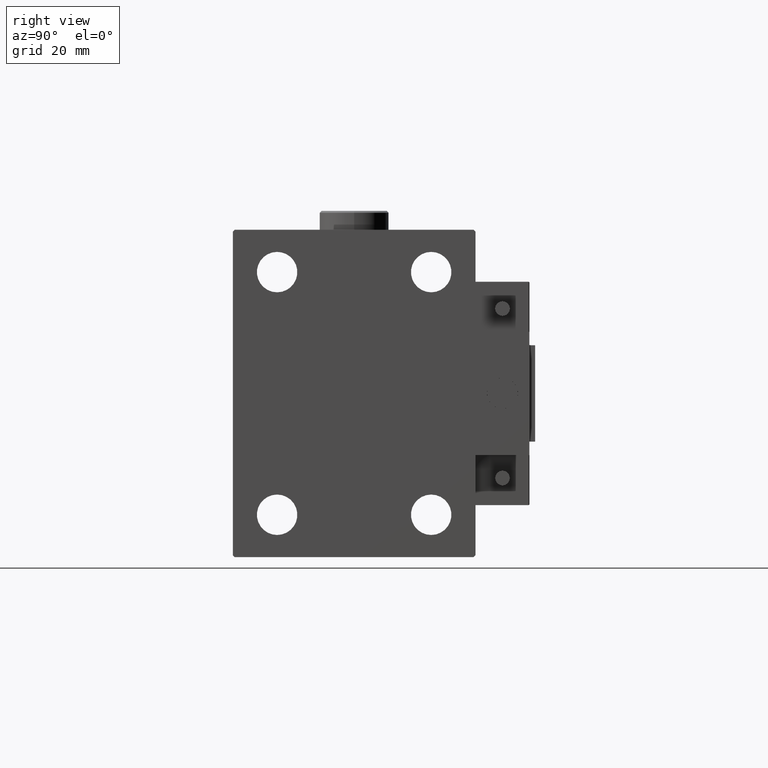
[diagram: clean part render]
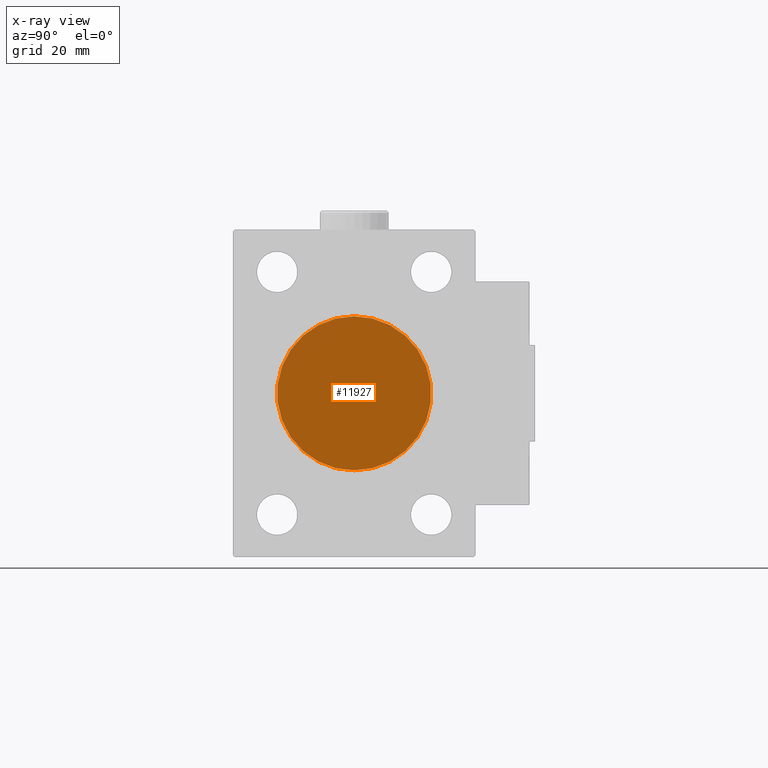
[diagram: x-ray — body ghosted, one internal face saturated and labeled with its STEP entity id]
A machine part, right view, then the same camera in x-ray: the body is ghosted and one INTERNAL B-rep face — a face not visible from any outside direction — is saturated and labeled: STEP entity #11927.
In plain terms, the highlighted planar face has unit normal (-1, 0, 0).
Its self-contained STEP definition (entity closure, byte-faithful):
#5867 = CARTESIAN_POINT ( 'NONE',  ( 20.00000000000000000, 2.449293598294706513E-15, 0.000000000000000000 ) ) ;
#6396 = AXIS2_PLACEMENT_3D ( 'NONE', #45714, #14063, #21599 ) ;
#7328 = DIRECTION ( 'NONE',  ( 0.000000000000000000, 0.000000000000000000, 1.000000000000000000 ) ) ;
#7581 = DIRECTION ( 'NONE',  ( 1.000000000000000000, 0.000000000000000000, 0.000000000000000000 ) ) ;
#7834 = CARTESIAN_POINT ( 'NONE',  ( -20.00000000000000000, 0.000000000000000000, 0.000000000000000000 ) ) ;
#8297 = DIRECTION ( 'NONE',  ( 1.000000000000000000, 0.000000000000000000, -0.000000000000000000 ) ) ;
#11927 = ADVANCED_FACE ( 'NONE', ( #28811 ), #17113, .F. ) ;
#14063 = DIRECTION ( 'NONE',  ( 0.000000000000000000, 0.000000000000000000, 1.000000000000000000 ) ) ;
#15954 = ORIENTED_EDGE ( 'NONE', *, *, #43690, .F. ) ;
#16095 = CARTESIAN_POINT ( 'NONE',  ( 0.000000000000000000, 0.000000000000000000, 0.000000000000000000 ) ) ;
#17113 = PLANE ( 'NONE',  #45553 ) ;
#19801 = EDGE_CURVE ( 'NONE', #36434, #48473, #28796, .T. ) ;
#21599 = DIRECTION ( 'NONE',  ( 1.000000000000000000, 0.000000000000000000, 0.000000000000000000 ) ) ;
#28796 = CIRCLE ( 'NONE', #6396, 20.00000000000000000 ) ;
#28811 = FACE_OUTER_BOUND ( 'NONE', #32827, .T. ) ;
#30945 = AXIS2_PLACEMENT_3D ( 'NONE', #47534, #7328, #7581 ) ;
#32827 = EDGE_LOOP ( 'NONE', ( #36688, #15954 ) ) ;
#36434 = VERTEX_POINT ( 'NONE', #7834 ) ;
#36688 = ORIENTED_EDGE ( 'NONE', *, *, #19801, .F. ) ;
#39238 = CIRCLE ( 'NONE', #30945, 20.00000000000000000 ) ;
#43690 = EDGE_CURVE ( 'NONE', #48473, #36434, #39238, .T. ) ;
#45553 = AXIS2_PLACEMENT_3D ( 'NONE', #16095, #47738, #8297 ) ;
#45714 = CARTESIAN_POINT ( 'NONE',  ( 0.000000000000000000, 0.000000000000000000, 0.000000000000000000 ) ) ;
#47534 = CARTESIAN_POINT ( 'NONE',  ( 0.000000000000000000, 0.000000000000000000, 0.000000000000000000 ) ) ;
#47738 = DIRECTION ( 'NONE',  ( 0.000000000000000000, 0.000000000000000000, 1.000000000000000000 ) ) ;
#48473 = VERTEX_POINT ( 'NONE', #5867 ) ;